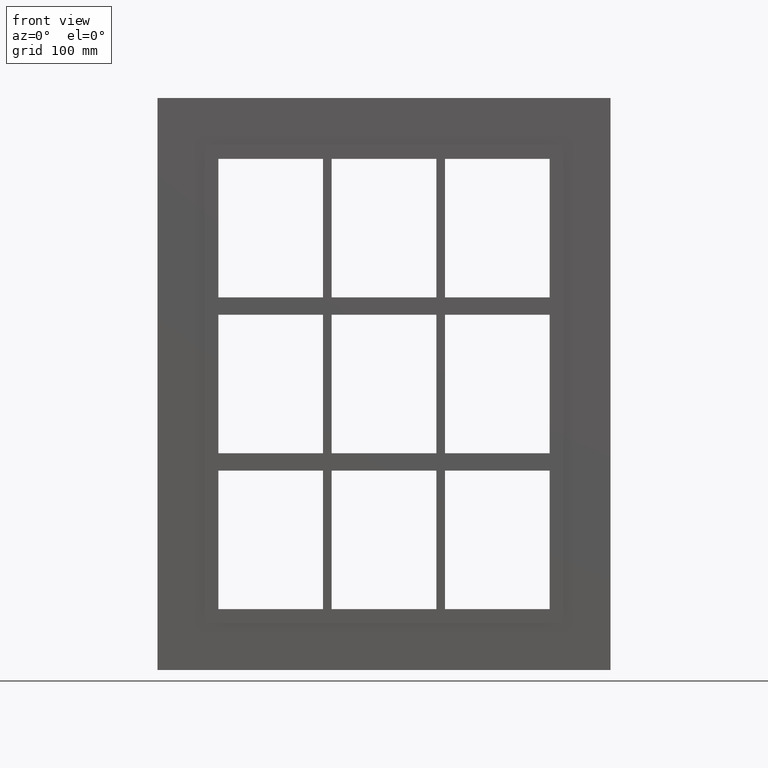
[diagram: clean part render]
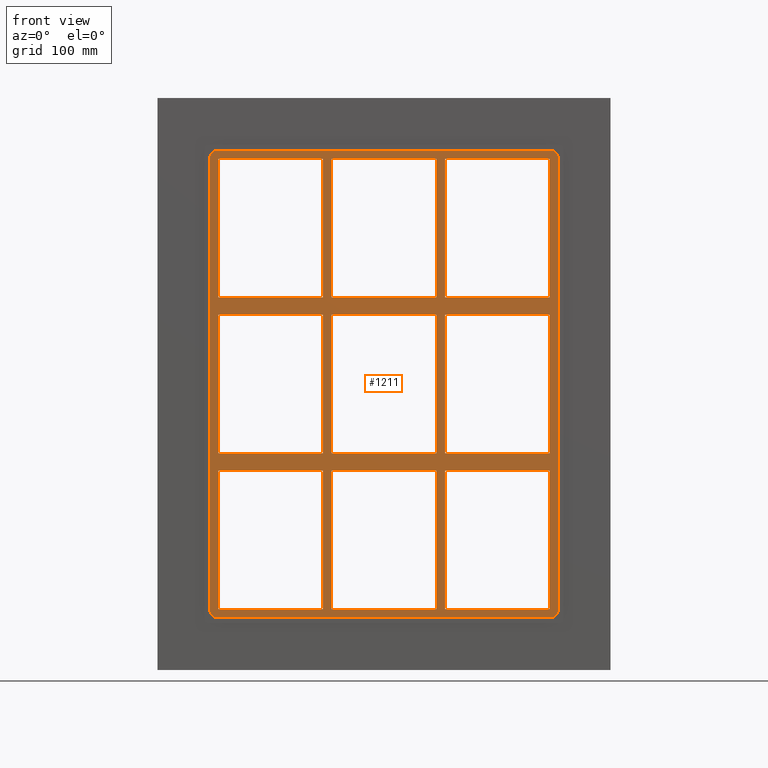
[diagram: same view with one face highlighted and labeled with its STEP entity id]
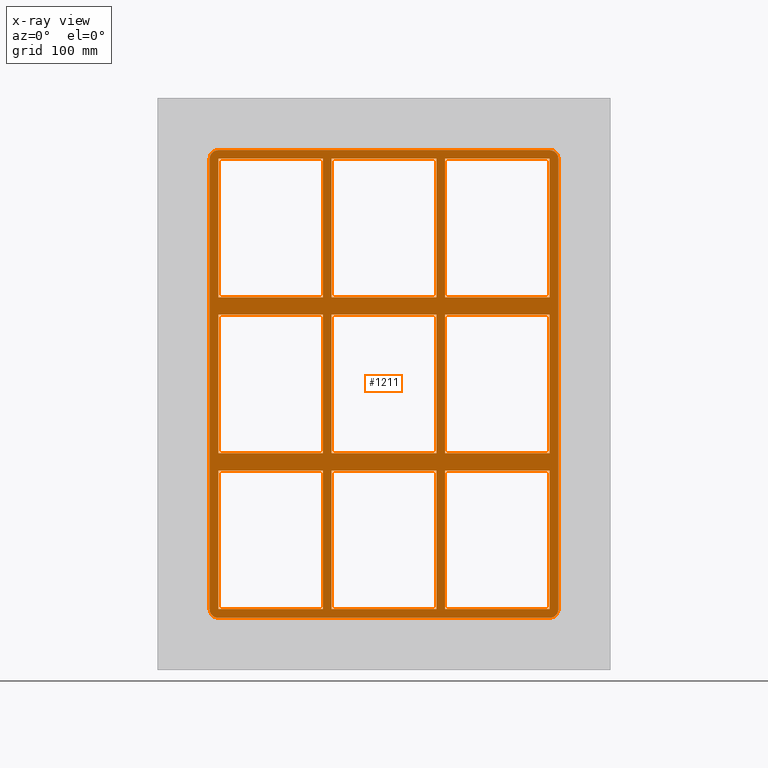
[diagram: x-ray of the same camera — body ghosted, the highlighted face saturated]
A machine part, front view. The second image highlights one B-rep face of the part: STEP entity #1211.
The next image is the same camera in x-ray: the body ghosted, the highlighted face saturated — about 0% of this face is hidden behind the body in this view.
In plain terms, the highlighted planar face has unit normal (0, 1, 0).
Its self-contained STEP definition (entity closure, byte-faithful):
#73=CARTESIAN_POINT('',(-70.250000000001364,-3.0,79.749999999990706));
#74=VERTEX_POINT('',#73);
#83=CARTESIAN_POINT('',(-190.74999999999972,-3.0,79.749999999990706));
#84=VERTEX_POINT('',#83);
#85=CARTESIAN_POINT('',(-70.250000000001364,-3.0,79.749999999990678));
#86=DIRECTION('',(-1.0,0.0,0.0));
#87=VECTOR('',#86,120.49999999999841);
#88=LINE('',#85,#87);
#89=EDGE_CURVE('',#74,#84,#88,.T.);
#115=CARTESIAN_POINT('',(70.250000000003638,-3.0,79.749999999990663));
#116=VERTEX_POINT('',#115);
#131=CARTESIAN_POINT('',(190.74999999999818,-3.0,79.749999999990635));
#132=VERTEX_POINT('',#131);
#139=CARTESIAN_POINT('',(190.74999999999818,-3.0,79.749999999990635));
#140=DIRECTION('',(-1.0,0.0,0.0));
#141=VECTOR('',#140,120.49999999999454);
#142=LINE('',#139,#141);
#143=EDGE_CURVE('',#132,#116,#142,.T.);
#153=CARTESIAN_POINT('',(60.24999999999865,-3.0,79.749999999990663));
#154=VERTEX_POINT('',#153);
#163=CARTESIAN_POINT('',(-60.249999999996362,-3.0,79.749999999990678));
#164=VERTEX_POINT('',#163);
#165=CARTESIAN_POINT('',(60.249999999998664,-3.0,79.749999999990663));
#166=DIRECTION('',(-1.0,0.0,0.0));
#167=VECTOR('',#166,120.49999999999503);
#168=LINE('',#165,#167);
#169=EDGE_CURVE('',#154,#164,#168,.T.);
#195=CARTESIAN_POINT('',(-70.250000000001364,-3.0,99.750000000000085));
#196=VERTEX_POINT('',#195);
#211=CARTESIAN_POINT('',(-190.74999999999972,-3.0,99.750000000000085));
#212=VERTEX_POINT('',#211);
#219=CARTESIAN_POINT('',(-190.74999999999972,-3.0,99.750000000000085));
#220=DIRECTION('',(1.0,0.0,0.0));
#221=VECTOR('',#220,120.49999999999834);
#222=LINE('',#219,#221);
#223=EDGE_CURVE('',#212,#196,#222,.T.);
#233=CARTESIAN_POINT('',(70.250000000003638,-3.0,99.750000000000085));
#234=VERTEX_POINT('',#233);
#243=CARTESIAN_POINT('',(190.74999999999991,-3.0,99.750000000000085));
#244=VERTEX_POINT('',#243);
#245=CARTESIAN_POINT('',(70.250000000003638,-3.0,99.750000000000085));
#246=DIRECTION('',(1.0,0.0,0.0));
#247=VECTOR('',#246,120.49999999999631);
#248=LINE('',#245,#247);
#249=EDGE_CURVE('',#234,#244,#248,.T.);
#275=CARTESIAN_POINT('',(60.249999999998636,-3.0,99.750000000000085));
#276=VERTEX_POINT('',#275);
#291=CARTESIAN_POINT('',(-60.249999999996362,-3.0,99.750000000000085));
#292=VERTEX_POINT('',#291);
#299=CARTESIAN_POINT('',(-60.249999999996362,-3.0,99.750000000000085));
#300=DIRECTION('',(1.0,0.0,0.0));
#301=VECTOR('',#300,120.499999999995);
#302=LINE('',#299,#301);
#303=EDGE_CURVE('',#292,#276,#302,.T.);
#322=CARTESIAN_POINT('',(-190.75000000000003,-3.0,259.25000000000006));
#323=VERTEX_POINT('',#322);
#330=CARTESIAN_POINT('',(-190.75000000000003,-3.0,99.750000000000085));
#331=DIRECTION('',(0.0,0.0,1.0));
#332=VECTOR('',#331,159.49999999999991);
#333=LINE('',#330,#332);
#334=EDGE_CURVE('',#212,#323,#333,.T.);
#353=CARTESIAN_POINT('',(190.74999999999991,-3.0,-79.749999999999943));
#354=VERTEX_POINT('',#353);
#361=CARTESIAN_POINT('',(190.75000000000003,-3.0,79.749999999990635));
#362=DIRECTION('',(0.0,0.0,-1.0));
#363=VECTOR('',#362,159.49999999999056);
#364=LINE('',#361,#363);
#365=EDGE_CURVE('',#132,#354,#364,.T.);
#376=CARTESIAN_POINT('',(190.75000000000003,-3.0,259.25000000000006));
#377=VERTEX_POINT('',#376);
#378=CARTESIAN_POINT('',(190.75000000000003,-3.0,259.25));
#379=DIRECTION('',(0.0,0.0,-1.0));
#380=VECTOR('',#379,159.49999999999991);
#381=LINE('',#378,#380);
#382=EDGE_CURVE('',#377,#244,#381,.T.);
#407=CARTESIAN_POINT('',(60.249999999998622,-3.0,259.25000000000006));
#408=VERTEX_POINT('',#407);
#409=CARTESIAN_POINT('',(60.249999999998643,-3.0,99.750000000000057));
#410=DIRECTION('',(0.0,0.0,1.0));
#411=VECTOR('',#410,159.5);
#412=LINE('',#409,#411);
#413=EDGE_CURVE('',#276,#408,#412,.T.);
#446=CARTESIAN_POINT('',(70.250000000003638,-3.0,259.25000000000006));
#447=VERTEX_POINT('',#446);
#454=CARTESIAN_POINT('',(70.250000000003638,-3.0,259.25000000000006));
#455=DIRECTION('',(0.0,0.0,-1.0));
#456=VECTOR('',#455,159.49999999999994);
#457=LINE('',#454,#456);
#458=EDGE_CURVE('',#447,#234,#457,.T.);
#469=CARTESIAN_POINT('',(-70.250000000001393,-3.0,259.25000000000006));
#470=VERTEX_POINT('',#469);
#471=CARTESIAN_POINT('',(-70.250000000001364,-3.0,99.750000000000057));
#472=DIRECTION('',(0.0,0.0,1.0));
#473=VECTOR('',#472,159.5);
#474=LINE('',#471,#473);
#475=EDGE_CURVE('',#196,#470,#474,.T.);
#508=CARTESIAN_POINT('',(-70.250000000001336,-3.0,-79.749999999999943));
#509=VERTEX_POINT('',#508);
#516=CARTESIAN_POINT('',(-70.250000000001336,-3.0,-79.749999999999943));
#517=DIRECTION('',(0.0,0.0,1.0));
#518=VECTOR('',#517,159.49999999999062);
#519=LINE('',#516,#518);
#520=EDGE_CURVE('',#509,#74,#519,.T.);
#539=CARTESIAN_POINT('',(-60.249999999996362,-3.0,259.25000000000006));
#540=VERTEX_POINT('',#539);
#547=CARTESIAN_POINT('',(-60.249999999996362,-3.0,259.25000000000006));
#548=DIRECTION('',(0.0,0.0,-1.0));
#549=VECTOR('',#548,159.49999999999994);
#550=LINE('',#547,#549);
#551=EDGE_CURVE('',#540,#292,#550,.T.);
#835=CARTESIAN_POINT('',(60.249999999998678,-3.0,-79.749999999999943));
#836=VERTEX_POINT('',#835);
#843=CARTESIAN_POINT('',(60.249999999998678,-3.0,-79.749999999999943));
#844=DIRECTION('',(0.0,0.0,1.0));
#845=VECTOR('',#844,159.49999999999056);
#846=LINE('',#843,#845);
#847=EDGE_CURVE('',#836,#154,#846,.T.);
#857=CARTESIAN_POINT('',(60.249999999998678,-3.0,-99.750000000009379));
#858=VERTEX_POINT('',#857);
#866=CARTESIAN_POINT('',(60.249999999998707,-3.0,-259.25000000000006));
#867=VERTEX_POINT('',#866);
#874=CARTESIAN_POINT('',(60.249999999998707,-3.0,-259.25000000000006));
#875=DIRECTION('',(0.0,0.0,1.0));
#876=VECTOR('',#875,159.49999999999068);
#877=LINE('',#874,#876);
#878=EDGE_CURVE('',#867,#858,#877,.T.);
#889=CARTESIAN_POINT('',(70.250000000003638,-3.0,-79.749999999999943));
#890=VERTEX_POINT('',#889);
#891=CARTESIAN_POINT('',(70.250000000003638,-3.0,79.749999999990678));
#892=DIRECTION('',(0.0,0.0,-1.0));
#893=VECTOR('',#892,159.49999999999062);
#894=LINE('',#891,#893);
#895=EDGE_CURVE('',#116,#890,#894,.T.);
#912=CARTESIAN_POINT('',(70.250000000003638,-3.0,-99.750000000009393));
#913=VERTEX_POINT('',#912);
#920=CARTESIAN_POINT('',(70.250000000003638,-3.0,-259.24999999998408));
#921=VERTEX_POINT('',#920);
#922=CARTESIAN_POINT('',(70.250000000003638,-3.0,-99.750000000009379));
#923=DIRECTION('',(0.0,0.0,-1.0));
#924=VECTOR('',#923,159.49999999997476);
#925=LINE('',#922,#924);
#926=EDGE_CURVE('',#913,#921,#925,.T.);
#945=CARTESIAN_POINT('',(-60.249999999996362,-3.0,-259.24999999998408));
#946=VERTEX_POINT('',#945);
#953=CARTESIAN_POINT('',(60.249999999998707,-3.0,-259.25000000000006));
#954=DIRECTION('',(-1.0,0.0,0.0));
#955=VECTOR('',#954,120.49999999999505);
#956=LINE('',#953,#955);
#957=EDGE_CURVE('',#867,#946,#956,.T.);
#968=CARTESIAN_POINT('',(190.75000000000003,-3.0,-259.25000000000006));
#969=VERTEX_POINT('',#968);
#970=CARTESIAN_POINT('',(190.75000000000003,-3.0,-259.25000000000006));
#971=DIRECTION('',(-1.0,0.0,0.0));
#972=VECTOR('',#971,120.49999999999639);
#973=LINE('',#970,#972);
#974=EDGE_CURVE('',#969,#921,#973,.T.);
#986=CARTESIAN_POINT('',(0.0,-3.0,0.0));
#987=DIRECTION('',(0.0,1.0,0.0));
#988=DIRECTION('',(0.0,0.0,1.0));
#989=AXIS2_PLACEMENT_3D('',#986,#987,#988);
#990=PLANE('',#989);
#991=CARTESIAN_POINT('',(200.75000000000003,-3.0,-259.25));
#992=VERTEX_POINT('',#991);
#993=CARTESIAN_POINT('',(190.75000000000003,-3.0,-269.25));
#994=VERTEX_POINT('',#993);
#995=CARTESIAN_POINT('',(190.75000000000003,-3.0,-259.25));
#996=DIRECTION('',(0.0,1.0,0.0));
#997=DIRECTION('',(0.707106781186547,0.0,-0.707106781186547));
#998=AXIS2_PLACEMENT_3D('',#995,#996,#997);
#999=CIRCLE('',#998,9.999999999999998);
#1000=EDGE_CURVE('',#992,#994,#999,.T.);
#1001=ORIENTED_EDGE('',*,*,#1000,.F.);
#1002=CARTESIAN_POINT('',(200.75000000000003,-3.0,259.25));
#1003=VERTEX_POINT('',#1002);
#1004=CARTESIAN_POINT('',(200.75000000000003,-3.0,-259.25));
#1005=DIRECTION('',(0.0,0.0,1.0));
#1006=VECTOR('',#1005,518.5);
#1007=LINE('',#1004,#1006);
#1008=EDGE_CURVE('',#992,#1003,#1007,.T.);
#1009=ORIENTED_EDGE('',*,*,#1008,.T.);
#1010=CARTESIAN_POINT('',(190.75000000000003,-3.0,269.25));
#1011=VERTEX_POINT('',#1010);
#1012=CARTESIAN_POINT('',(190.75000000000003,-3.0,259.25));
#1013=DIRECTION('',(0.0,1.0,0.0));
#1014=DIRECTION('',(0.707106781186547,0.0,0.707106781186547));
#1015=AXIS2_PLACEMENT_3D('',#1012,#1013,#1014);
#1016=CIRCLE('',#1015,9.999999999999998);
#1017=EDGE_CURVE('',#1011,#1003,#1016,.T.);
#1018=ORIENTED_EDGE('',*,*,#1017,.F.);
#1019=CARTESIAN_POINT('',(-190.75000000000003,-3.0,269.25));
#1020=VERTEX_POINT('',#1019);
#1021=CARTESIAN_POINT('',(190.75000000000003,-3.0,269.25));
#1022=DIRECTION('',(-1.0,0.0,0.0));
#1023=VECTOR('',#1022,381.50000000000006);
#1024=LINE('',#1021,#1023);
#1025=EDGE_CURVE('',#1011,#1020,#1024,.T.);
#1026=ORIENTED_EDGE('',*,*,#1025,.T.);
#1027=CARTESIAN_POINT('',(-200.75000000000003,-3.0,259.25));
#1028=VERTEX_POINT('',#1027);
#1029=CARTESIAN_POINT('',(-190.75000000000003,-3.0,259.25));
#1030=DIRECTION('',(0.0,1.0,0.0));
#1031=DIRECTION('',(-0.707106781186547,0.0,0.707106781186547));
#1032=AXIS2_PLACEMENT_3D('',#1029,#1030,#1031);
#1033=CIRCLE('',#1032,9.999999999999998);
#1034=EDGE_CURVE('',#1028,#1020,#1033,.T.);
#1035=ORIENTED_EDGE('',*,*,#1034,.F.);
#1036=CARTESIAN_POINT('',(-200.75000000000003,-3.0,-259.25));
#1037=VERTEX_POINT('',#1036);
#1038=CARTESIAN_POINT('',(-200.75000000000003,-3.0,259.25));
#1039=DIRECTION('',(0.0,0.0,-1.0));
#1040=VECTOR('',#1039,518.5);
#1041=LINE('',#1038,#1040);
#1042=EDGE_CURVE('',#1028,#1037,#1041,.T.);
#1043=ORIENTED_EDGE('',*,*,#1042,.T.);
#1044=CARTESIAN_POINT('',(-190.75000000000003,-3.0,-269.25));
#1045=VERTEX_POINT('',#1044);
#1046=CARTESIAN_POINT('',(-190.75000000000003,-3.0,-259.25));
#1047=DIRECTION('',(0.0,1.0,0.0));
#1048=DIRECTION('',(-0.707106781186547,0.0,-0.707106781186547));
#1049=AXIS2_PLACEMENT_3D('',#1046,#1047,#1048);
#1050=CIRCLE('',#1049,9.999999999999998);
#1051=EDGE_CURVE('',#1045,#1037,#1050,.T.);
#1052=ORIENTED_EDGE('',*,*,#1051,.F.);
#1053=CARTESIAN_POINT('',(-190.75000000000003,-3.0,-269.25));
#1054=DIRECTION('',(1.0,0.0,0.0));
#1055=VECTOR('',#1054,381.50000000000006);
#1056=LINE('',#1053,#1055);
#1057=EDGE_CURVE('',#1045,#994,#1056,.T.);
#1058=ORIENTED_EDGE('',*,*,#1057,.T.);
#1059=EDGE_LOOP('',(#1001,#1009,#1018,#1026,#1035,#1043,#1052,#1058));
#1060=FACE_OUTER_BOUND('',#1059,.T.);
#1061=ORIENTED_EDGE('',*,*,#334,.T.);
#1062=CARTESIAN_POINT('',(-190.75000000000003,-3.0,259.25));
#1063=DIRECTION('',(1.0,0.0,0.0));
#1064=VECTOR('',#1063,120.49999999999864);
#1065=LINE('',#1062,#1064);
#1066=EDGE_CURVE('',#323,#470,#1065,.T.);
#1067=ORIENTED_EDGE('',*,*,#1066,.T.);
#1068=ORIENTED_EDGE('',*,*,#475,.F.);
#1069=ORIENTED_EDGE('',*,*,#223,.F.);
#1070=EDGE_LOOP('',(#1061,#1067,#1068,#1069));
#1071=FACE_BOUND('',#1070,.T.);
#1072=ORIENTED_EDGE('',*,*,#365,.T.);
#1073=CARTESIAN_POINT('',(70.250000000003638,-3.0,-79.749999999999943));
#1074=DIRECTION('',(1.0,0.0,0.0));
#1075=VECTOR('',#1074,120.49999999999631);
#1076=LINE('',#1073,#1075);
#1077=EDGE_CURVE('',#890,#354,#1076,.T.);
#1078=ORIENTED_EDGE('',*,*,#1077,.F.);
#1079=ORIENTED_EDGE('',*,*,#895,.F.);
#1080=ORIENTED_EDGE('',*,*,#143,.F.);
#1081=EDGE_LOOP('',(#1072,#1078,#1079,#1080));
#1082=FACE_BOUND('',#1081,.T.);
#1083=ORIENTED_EDGE('',*,*,#847,.F.);
#1084=CARTESIAN_POINT('',(-60.249999999996362,-3.0,-79.749999999999943));
#1085=VERTEX_POINT('',#1084);
#1086=CARTESIAN_POINT('',(-60.249999999996362,-3.0,-79.749999999999943));
#1087=DIRECTION('',(1.0,0.0,0.0));
#1088=VECTOR('',#1087,120.49999999999503);
#1089=LINE('',#1086,#1088);
#1090=EDGE_CURVE('',#1085,#836,#1089,.T.);
#1091=ORIENTED_EDGE('',*,*,#1090,.F.);
#1092=CARTESIAN_POINT('',(-60.249999999996362,-3.0,79.749999999990678));
#1093=DIRECTION('',(0.0,0.0,-1.0));
#1094=VECTOR('',#1093,159.49999999999062);
#1095=LINE('',#1092,#1094);
#1096=EDGE_CURVE('',#164,#1085,#1095,.T.);
#1097=ORIENTED_EDGE('',*,*,#1096,.F.);
#1098=ORIENTED_EDGE('',*,*,#169,.F.);
#1099=EDGE_LOOP('',(#1083,#1091,#1097,#1098));
#1100=FACE_BOUND('',#1099,.T.);
#1101=ORIENTED_EDGE('',*,*,#303,.F.);
#1102=ORIENTED_EDGE('',*,*,#551,.F.);
#1103=CARTESIAN_POINT('',(-60.249999999996362,-3.0,259.25));
#1104=DIRECTION('',(1.0,0.0,0.0));
#1105=VECTOR('',#1104,120.49999999999498);
#1106=LINE('',#1103,#1105);
#1107=EDGE_CURVE('',#540,#408,#1106,.T.);
#1108=ORIENTED_EDGE('',*,*,#1107,.T.);
#1109=ORIENTED_EDGE('',*,*,#413,.F.);
#1110=EDGE_LOOP('',(#1101,#1102,#1108,#1109));
#1111=FACE_BOUND('',#1110,.T.);
#1112=ORIENTED_EDGE('',*,*,#89,.F.);
#1113=ORIENTED_EDGE('',*,*,#520,.F.);
#1114=CARTESIAN_POINT('',(-190.74999999999972,-3.0,-79.749999999999943));
#1115=VERTEX_POINT('',#1114);
#1116=CARTESIAN_POINT('',(-190.74999999999972,-3.0,-79.749999999999943));
#1117=DIRECTION('',(1.0,0.0,0.0));
#1118=VECTOR('',#1117,120.49999999999838);
#1119=LINE('',#1116,#1118);
#1120=EDGE_CURVE('',#1115,#509,#1119,.T.);
#1121=ORIENTED_EDGE('',*,*,#1120,.F.);
#1122=CARTESIAN_POINT('',(-190.75000000000003,-3.0,-79.749999999999943));
#1123=DIRECTION('',(0.0,0.0,1.0));
#1124=VECTOR('',#1123,159.49999999999065);
#1125=LINE('',#1122,#1124);
#1126=EDGE_CURVE('',#1115,#84,#1125,.T.);
#1127=ORIENTED_EDGE('',*,*,#1126,.T.);
#1128=EDGE_LOOP('',(#1112,#1113,#1121,#1127));
#1129=FACE_BOUND('',#1128,.T.);
#1130=ORIENTED_EDGE('',*,*,#249,.F.);
#1131=ORIENTED_EDGE('',*,*,#458,.F.);
#1132=CARTESIAN_POINT('',(70.250000000003652,-3.0,259.25));
#1133=DIRECTION('',(1.0,0.0,0.0));
#1134=VECTOR('',#1133,120.4999999999964);
#1135=LINE('',#1132,#1134);
#1136=EDGE_CURVE('',#447,#377,#1135,.T.);
#1137=ORIENTED_EDGE('',*,*,#1136,.T.);
#1138=ORIENTED_EDGE('',*,*,#382,.T.);
#1139=EDGE_LOOP('',(#1130,#1131,#1137,#1138));
#1140=FACE_BOUND('',#1139,.T.);
#1141=ORIENTED_EDGE('',*,*,#957,.T.);
#1142=CARTESIAN_POINT('',(-60.249999999996362,-3.0,-99.750000000009337));
#1143=VERTEX_POINT('',#1142);
#1144=CARTESIAN_POINT('',(-60.249999999996362,-3.0,-99.750000000009322));
#1145=DIRECTION('',(0.0,0.0,-1.0));
#1146=VECTOR('',#1145,159.49999999997482);
#1147=LINE('',#1144,#1146);
#1148=EDGE_CURVE('',#1143,#946,#1147,.T.);
#1149=ORIENTED_EDGE('',*,*,#1148,.F.);
#1150=CARTESIAN_POINT('',(60.249999999998664,-3.0,-99.750000000009365));
#1151=DIRECTION('',(-1.0,0.0,0.0));
#1152=VECTOR('',#1151,120.49999999999503);
#1153=LINE('',#1150,#1152);
#1154=EDGE_CURVE('',#858,#1143,#1153,.T.);
#1155=ORIENTED_EDGE('',*,*,#1154,.F.);
#1156=ORIENTED_EDGE('',*,*,#878,.F.);
#1157=EDGE_LOOP('',(#1141,#1149,#1155,#1156));
#1158=FACE_BOUND('',#1157,.T.);
#1159=ORIENTED_EDGE('',*,*,#926,.F.);
#1160=CARTESIAN_POINT('',(190.74999999999818,-3.0,-99.750000000009393));
#1161=VERTEX_POINT('',#1160);
#1162=CARTESIAN_POINT('',(190.74999999999818,-3.0,-99.750000000009393));
#1163=DIRECTION('',(-1.0,0.0,0.0));
#1164=VECTOR('',#1163,120.49999999999454);
#1165=LINE('',#1162,#1164);
#1166=EDGE_CURVE('',#1161,#913,#1165,.T.);
#1167=ORIENTED_EDGE('',*,*,#1166,.F.);
#1168=CARTESIAN_POINT('',(190.75000000000003,-3.0,-99.750000000009379));
#1169=DIRECTION('',(0.0,0.0,-1.0));
#1170=VECTOR('',#1169,159.49999999999062);
#1171=LINE('',#1168,#1170);
#1172=EDGE_CURVE('',#1161,#969,#1171,.T.);
#1173=ORIENTED_EDGE('',*,*,#1172,.T.);
#1174=ORIENTED_EDGE('',*,*,#974,.T.);
#1175=EDGE_LOOP('',(#1159,#1167,#1173,#1174));
#1176=FACE_BOUND('',#1175,.T.);
#1177=CARTESIAN_POINT('',(-70.250000000001336,-3.0,-99.750000000009337));
#1178=VERTEX_POINT('',#1177);
#1179=CARTESIAN_POINT('',(-190.74999999999972,-3.0,-99.750000000009322));
#1180=VERTEX_POINT('',#1179);
#1181=CARTESIAN_POINT('',(-70.250000000001364,-3.0,-99.750000000009351));
#1182=DIRECTION('',(-1.0,0.0,0.0));
#1183=VECTOR('',#1182,120.49999999999841);
#1184=LINE('',#1181,#1183);
#1185=EDGE_CURVE('',#1178,#1180,#1184,.T.);
#1186=ORIENTED_EDGE('',*,*,#1185,.F.);
#1187=CARTESIAN_POINT('',(-70.250000000001307,-3.0,-259.25000000000006));
#1188=VERTEX_POINT('',#1187);
#1189=CARTESIAN_POINT('',(-70.250000000001307,-3.0,-259.25000000000006));
#1190=DIRECTION('',(0.0,0.0,1.0));
#1191=VECTOR('',#1190,159.49999999999071);
#1192=LINE('',#1189,#1191);
#1193=EDGE_CURVE('',#1188,#1178,#1192,.T.);
#1194=ORIENTED_EDGE('',*,*,#1193,.F.);
#1195=CARTESIAN_POINT('',(-190.75000000000003,-3.0,-259.25000000000006));
#1196=VERTEX_POINT('',#1195);
#1197=CARTESIAN_POINT('',(-70.250000000001293,-3.0,-259.25000000000006));
#1198=DIRECTION('',(-1.0,0.0,0.0));
#1199=VECTOR('',#1198,120.49999999999876);
#1200=LINE('',#1197,#1199);
#1201=EDGE_CURVE('',#1188,#1196,#1200,.T.);
#1202=ORIENTED_EDGE('',*,*,#1201,.T.);
#1203=CARTESIAN_POINT('',(-190.75000000000003,-3.0,-259.25000000000006));
#1204=DIRECTION('',(0.0,0.0,1.0));
#1205=VECTOR('',#1204,159.49999999999073);
#1206=LINE('',#1203,#1205);
#1207=EDGE_CURVE('',#1196,#1180,#1206,.T.);
#1208=ORIENTED_EDGE('',*,*,#1207,.T.);
#1209=EDGE_LOOP('',(#1186,#1194,#1202,#1208));
#1210=FACE_BOUND('',#1209,.T.);
#1211=ADVANCED_FACE('',(#1060,#1071,#1082,#1100,#1111,#1129,#1140,#1158,#1176,#1210),#990,.F.);